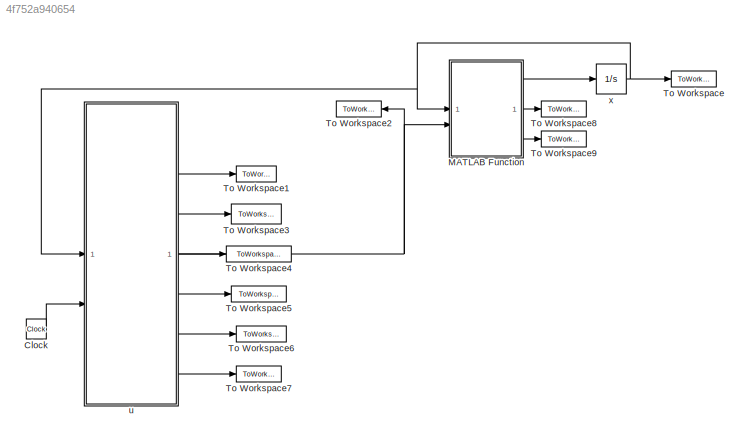
MODEL slx_4f752a940654
KIND model
CONFIG AbsTol = auto
CONFIG EnableMultiTasking = off
CONFIG FixedStep = Step_T
CONFIG InitFcn = run("P_sim.m")
CONFIG MaxStep = auto
CONFIG MinStep = auto
CONFIG RelTol = 1e-3
CONFIG SampleTimeConstraint = Unconstrained
CONFIG SolverName = FixedStepAuto
CONFIG StartTime = 0.0
CONFIG StopTime = Time
BLOCK [Clock] Clock
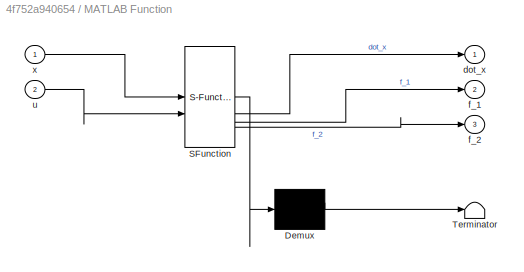
BLOCK [SubSystem] MATLAB Function
  ErrorFcn = Stateflow.Translate.translate
  PermitHierarchicalResolution = ExplicitOnly
  SFBlockType = MATLAB Function
  TreatAsAtomicUnit = on
BLOCK [Demux] MATLAB Function/ Demux 
  Outputs = 1
BLOCK [S-Function] MATLAB Function/ SFunction 
  EnableBusSupport = on
  FunctionName = sf_sfun
  PortCounts = [2 4]
  SFcnIsStateOwnerBlock = off
  SFunctionDeploymentMode = off
  Tag = Stateflow S-Function 2
BLOCK [Terminator] MATLAB Function/ Terminator 
BLOCK [Outport] MATLAB Function/dot_x
BLOCK [Outport] MATLAB Function/f_1
  Port = 2
BLOCK [Outport] MATLAB Function/f_2
  Port = 3
BLOCK [Inport] MATLAB Function/u
  Port = 2
BLOCK [Inport] MATLAB Function/x
BLOCK [ToWorkspace] To Workspace
  FixptAsFi = on
  MaxDataPoints = inf
  SampleTime = -1
  SaveFormat = Timeseries
  VariableName = x
BLOCK [ToWorkspace] To Workspace1
  FixptAsFi = on
  MaxDataPoints = inf
  SampleTime = -1
  SaveFormat = Timeseries
  VariableName = e
BLOCK [ToWorkspace] To Workspace2
  FixptAsFi = on
  MaxDataPoints = inf
  NameLocation = top
  SampleTime = -1
  SaveFormat = Timeseries
  VariableName = u
BLOCK [ToWorkspace] To Workspace3
  FixptAsFi = on
  MaxDataPoints = inf
  SampleTime = -1
  SaveFormat = Timeseries
  VariableName = y_d
BLOCK [ToWorkspace] To Workspace4
  FixptAsFi = on
  MaxDataPoints = inf
  SampleTime = -1
  SaveFormat = Timeseries
  VariableName = alpha_1
BLOCK [ToWorkspace] To Workspace5
  FixptAsFi = on
  MaxDataPoints = inf
  SampleTime = -1
  SaveFormat = Timeseries
  VariableName = V
BLOCK [ToWorkspace] To Workspace6
  FixptAsFi = on
  MaxDataPoints = inf
  SampleTime = -1
  SaveFormat = Timeseries
  VariableName = hat_f_1
BLOCK [ToWorkspace] To Workspace7
  FixptAsFi = on
  MaxDataPoints = inf
  SampleTime = -1
  SaveFormat = Timeseries
  VariableName = hat_f_2
BLOCK [ToWorkspace] To Workspace8
  FixptAsFi = on
  MaxDataPoints = inf
  SampleTime = -1
  SaveFormat = Timeseries
  VariableName = f_1
BLOCK [ToWorkspace] To Workspace9
  FixptAsFi = on
  MaxDataPoints = inf
  SampleTime = -1
  SaveFormat = Timeseries
  VariableName = f_2
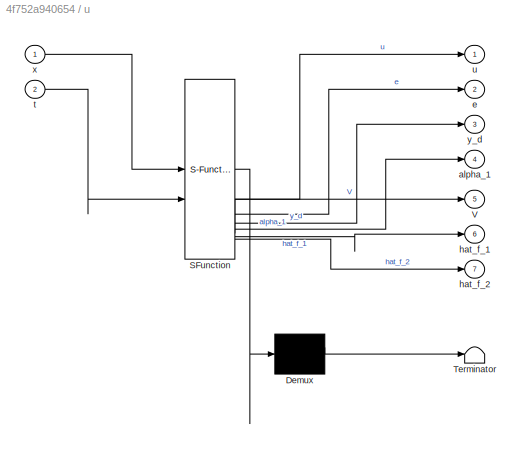
BLOCK [SubSystem] u
  ErrorFcn = Stateflow.Translate.translate
  PermitHierarchicalResolution = ExplicitOnly
  SFBlockType = MATLAB Function
  TreatAsAtomicUnit = on
BLOCK [Demux] u/ Demux 
  Outputs = 1
BLOCK [S-Function] u/ SFunction 
  EnableBusSupport = on
  FunctionName = sf_sfun
  Parameters = pam
  PortCounts = [2 8]
  SFcnIsStateOwnerBlock = off
  SFunctionDeploymentMode = off
  Tag = Stateflow S-Function 1
BLOCK [Terminator] u/ Terminator 
BLOCK [Outport] u/V
  Port = 5
BLOCK [Outport] u/alpha_1
  Port = 4
BLOCK [Outport] u/e
  Port = 2
BLOCK [Outport] u/hat_f_1
  Port = 6
BLOCK [Outport] u/hat_f_2
  Port = 7
BLOCK [Inport] u/t
  Port = 2
BLOCK [Outport] u/u
BLOCK [Inport] u/x
BLOCK [Outport] u/y_d
  Port = 3
BLOCK [Integrator] x
  InitialCondition = [x_1_0;x_2_0]
LINE Clock:1 -> u:2
LINE MATLAB Function:1 -> x:1
LINE MATLAB Function:2 -> To Workspace8:1
LINE MATLAB Function:3 -> To Workspace9:1
NET u:1 -> MATLAB Function:2, To Workspace2:1
LINE u:2 -> To Workspace1:1
LINE u:3 -> To Workspace3:1
LINE u:4 -> To Workspace4:1
LINE u:5 -> To Workspace5:1
LINE u:6 -> To Workspace6:1
LINE u:7 -> To Workspace7:1
NET x:1 -> MATLAB Function:1, To Workspace:1, u:1
note: NET lines group one-source signal fan-out (src -> all destinations, sorted); 1:1 wires keep LINE
CHART u states=1 transitions=1
  STATE_LABEL 'eML_blk_kernel()'
  STATE_LABEL "SCRIPT:\nfunction [u,e,y_d,alpha_1,V,hat_f_1,hat_f_2]  = fcn(x,t,pam)\n\ny_d = sin(t);\ndot_y_d = cos(t);\nddot_y_d = -sin(t);\n\nx_1 = x(1);\nx_2 = x(2);\n\nz_1 = [x_1;x_1^2];\nz_2 = [x_1;x_2;x_1*x_2;x_1^2;x_2^2];\n\ndot_x_1 = x_2-2*x_1;\n\n%% 第一阶\ne_1 = x_1 - y_d;\nalpha_1 = -pam.lambda_1*e_1-pam.hat_theta_1'*z_1+dot_y_d;\n \n%% 第二阶\ne_2 = x_2 - alpha_1;\ndot_alpha_1 = -pam.lambda_1*(dot_x_1-dot_y_d)+2*dot_x_1+ddot_...<+158ch>"
CHART MATLAB Function states=1 transitions=1
  STATE_LABEL 'eML_blk_kernel()'
  STATE_LABEL 'SCRIPT:\nfunction [dot_x,f_1,f_2]  = fcn(x,u)\n\nx_1 = x(1);\nx_2 = x(2);\n\nf_1 = -2*x_1;\nf_2 = +3*x_1-x_1*x_2+x_2^2;\n\ndot_x_1 = x_2+f_1;\ndot_x_2 = u+f_2;\n\ndot_x = [dot_x_1;dot_x_2];\n'
CHART  states=0 transitions=0
CHART  states=0 transitions=0
